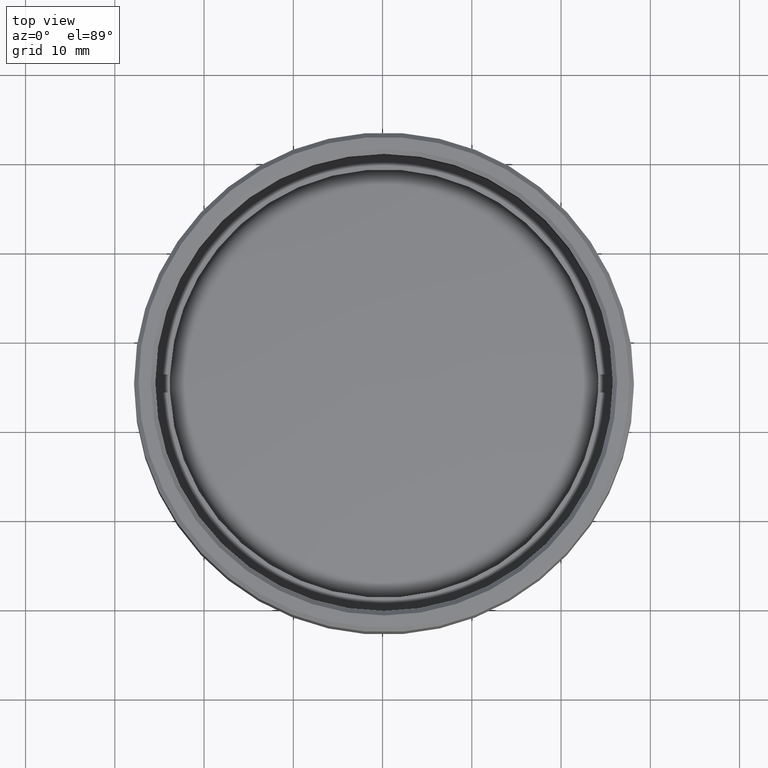
[diagram: clean part render]
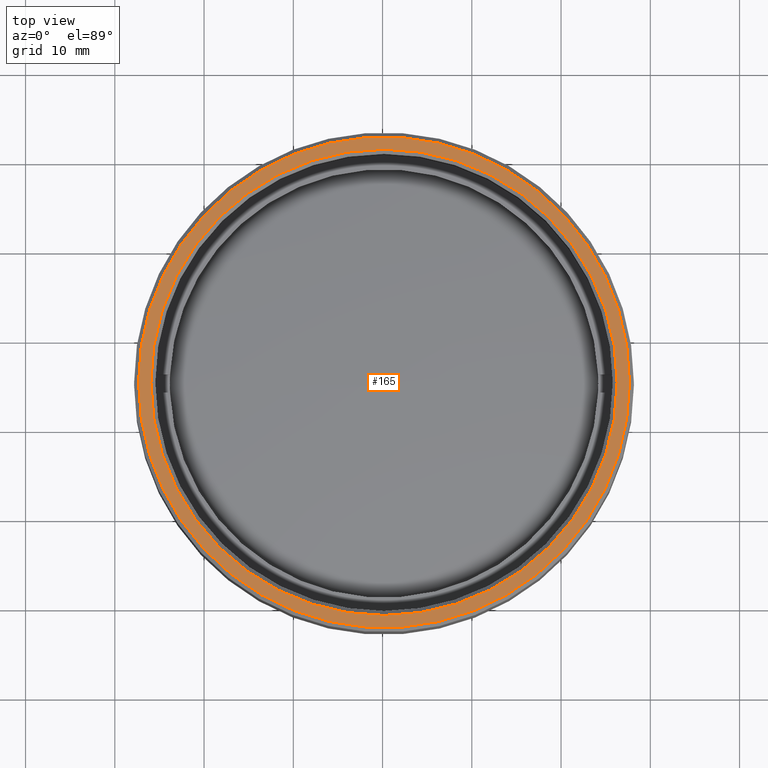
[diagram: same view with one face highlighted and labeled with its STEP entity id]
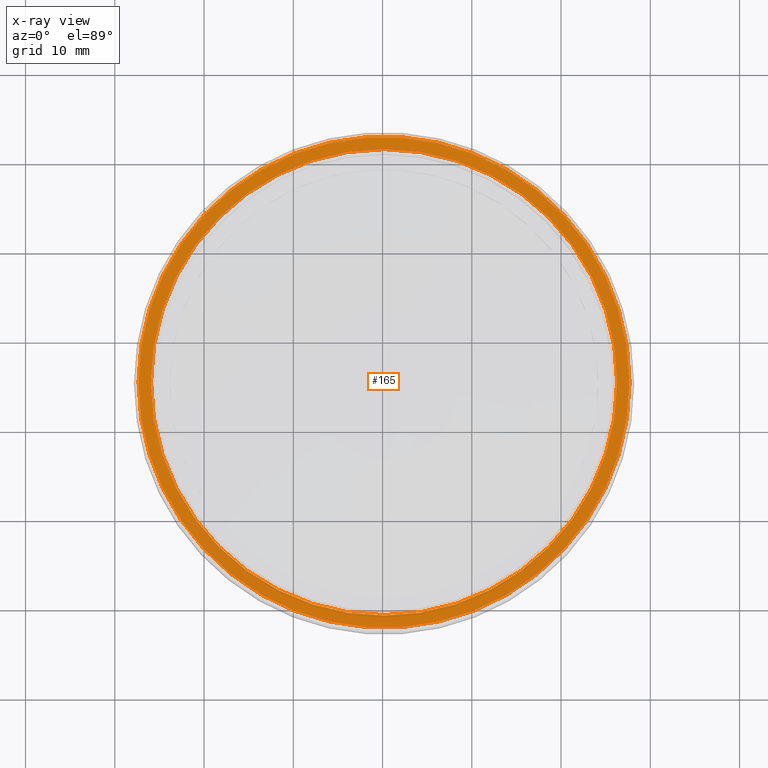
[diagram: x-ray of the same camera — body ghosted, the highlighted face saturated]
A machine part, top view. The second image highlights one B-rep face of the part: STEP entity #165.
The next image is the same camera in x-ray: the body ghosted, the highlighted face saturated — about 0% of this face is hidden behind the body in this view.
In plain terms, the highlighted planar face has unit normal (0, 0, 1).
Its self-contained STEP definition (entity closure, byte-faithful):
#5 = AXIS2_PLACEMENT_3D ( 'NONE', #569, #1358, #1588 ) ;
#19 = EDGE_LOOP ( 'NONE', ( #1423, #768 ) ) ;
#29 = ORIENTED_EDGE ( 'NONE', *, *, #42, .T. ) ;
#42 = EDGE_CURVE ( 'NONE', #1240, #1379, #1505, .T. ) ;
#50 = FACE_BOUND ( 'NONE', #1607, .T. ) ;
#70 = AXIS2_PLACEMENT_3D ( 'NONE', #171, #977, #1526 ) ;
#165 = ADVANCED_FACE ( 'NONE', ( #50, #472 ), #1139, .T. ) ;
#171 = CARTESIAN_POINT ( 'NONE',  ( 0.000000000000000000, 0.000000000000000000, 21.50000000000000000 ) ) ;
#200 = DIRECTION ( 'NONE',  ( 1.000000000000000000, 0.000000000000000000, -0.000000000000000000 ) ) ;
#290 = AXIS2_PLACEMENT_3D ( 'NONE', #691, #554, #413 ) ;
#371 = CARTESIAN_POINT ( 'NONE',  ( 27.49999999999998579, 3.398394867633904700E-15, 21.50000000000000000 ) ) ;
#377 = CARTESIAN_POINT ( 'NONE',  ( 0.000000000000000000, 0.000000000000000000, 21.50000000000000000 ) ) ;
#400 = EDGE_CURVE ( 'NONE', #1379, #1240, #781, .T. ) ;
#413 = DIRECTION ( 'NONE',  ( 1.000000000000000000, 0.000000000000000000, 0.000000000000000000 ) ) ;
#446 = DIRECTION ( 'NONE',  ( 0.000000000000000000, 0.000000000000000000, 1.000000000000000000 ) ) ;
#455 = CARTESIAN_POINT ( 'NONE',  ( 26.12500000000000355, 0.000000000000000000, 21.50000000000000000 ) ) ;
#472 = FACE_OUTER_BOUND ( 'NONE', #19, .T. ) ;
#554 = DIRECTION ( 'NONE',  ( 0.000000000000000000, 0.000000000000000000, 1.000000000000000000 ) ) ;
#569 = CARTESIAN_POINT ( 'NONE',  ( 0.000000000000000000, 0.000000000000000000, 21.50000000000000000 ) ) ;
#691 = CARTESIAN_POINT ( 'NONE',  ( 0.000000000000000000, 0.000000000000000000, 21.50000000000000000 ) ) ;
#732 = EDGE_CURVE ( 'NONE', #1369, #959, #1733, .T. ) ;
#768 = ORIENTED_EDGE ( 'NONE', *, *, #1046, .T. ) ;
#781 = CIRCLE ( 'NONE', #5, 26.12500000000000355 ) ;
#849 = CIRCLE ( 'NONE', #1387, 27.49999999999998579 ) ;
#898 = CARTESIAN_POINT ( 'NONE',  ( 0.000000000000000000, 0.000000000000000000, 21.50000000000000000 ) ) ;
#954 = ORIENTED_EDGE ( 'NONE', *, *, #400, .T. ) ;
#959 = VERTEX_POINT ( 'NONE', #371 ) ;
#977 = DIRECTION ( 'NONE',  ( -0.000000000000000000, -0.000000000000000000, -1.000000000000000000 ) ) ;
#1033 = AXIS2_PLACEMENT_3D ( 'NONE', #898, #446, #200 ) ;
#1045 = CARTESIAN_POINT ( 'NONE',  ( -26.12500000000000355, 3.199389762772460873E-15, 21.50000000000000000 ) ) ;
#1046 = EDGE_CURVE ( 'NONE', #959, #1369, #849, .T. ) ;
#1061 = DIRECTION ( 'NONE',  ( 1.000000000000000000, 0.000000000000000000, 0.000000000000000000 ) ) ;
#1076 = DIRECTION ( 'NONE',  ( 0.000000000000000000, 0.000000000000000000, 1.000000000000000000 ) ) ;
#1139 = PLANE ( 'NONE',  #1033 ) ;
#1240 = VERTEX_POINT ( 'NONE', #455 ) ;
#1358 = DIRECTION ( 'NONE',  ( -0.000000000000000000, -0.000000000000000000, -1.000000000000000000 ) ) ;
#1369 = VERTEX_POINT ( 'NONE', #1708 ) ;
#1379 = VERTEX_POINT ( 'NONE', #1045 ) ;
#1387 = AXIS2_PLACEMENT_3D ( 'NONE', #377, #1076, #1061 ) ;
#1423 = ORIENTED_EDGE ( 'NONE', *, *, #732, .T. ) ;
#1505 = CIRCLE ( 'NONE', #70, 26.12500000000000355 ) ;
#1526 = DIRECTION ( 'NONE',  ( 1.000000000000000000, 0.000000000000000000, 0.000000000000000000 ) ) ;
#1588 = DIRECTION ( 'NONE',  ( 1.000000000000000000, 0.000000000000000000, 0.000000000000000000 ) ) ;
#1607 = EDGE_LOOP ( 'NONE', ( #29, #954 ) ) ;
#1708 = CARTESIAN_POINT ( 'NONE',  ( -27.49999999999998579, 0.000000000000000000, 21.50000000000000000 ) ) ;
#1733 = CIRCLE ( 'NONE', #290, 27.49999999999998579 ) ;